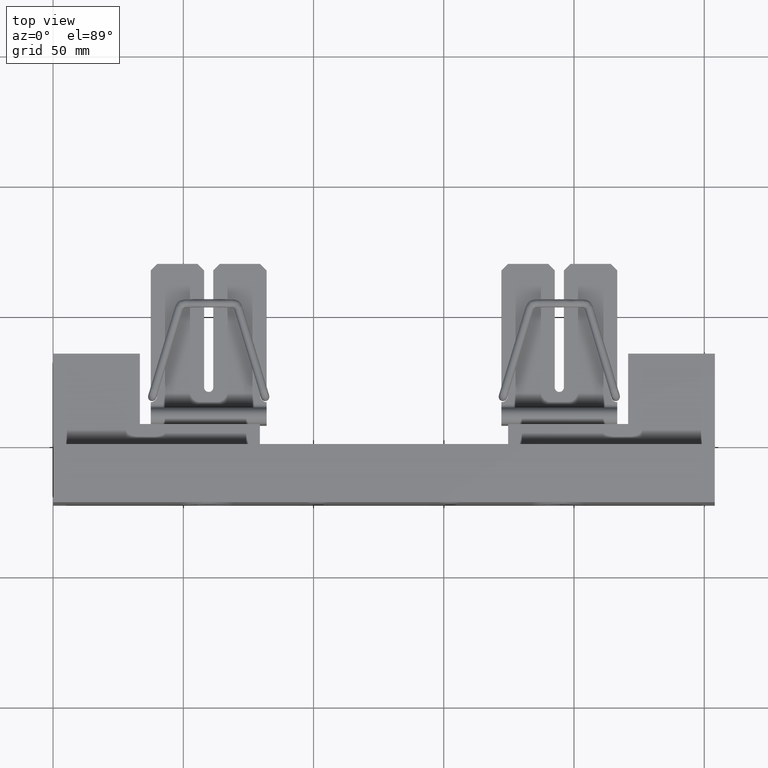
[diagram: clean part render]
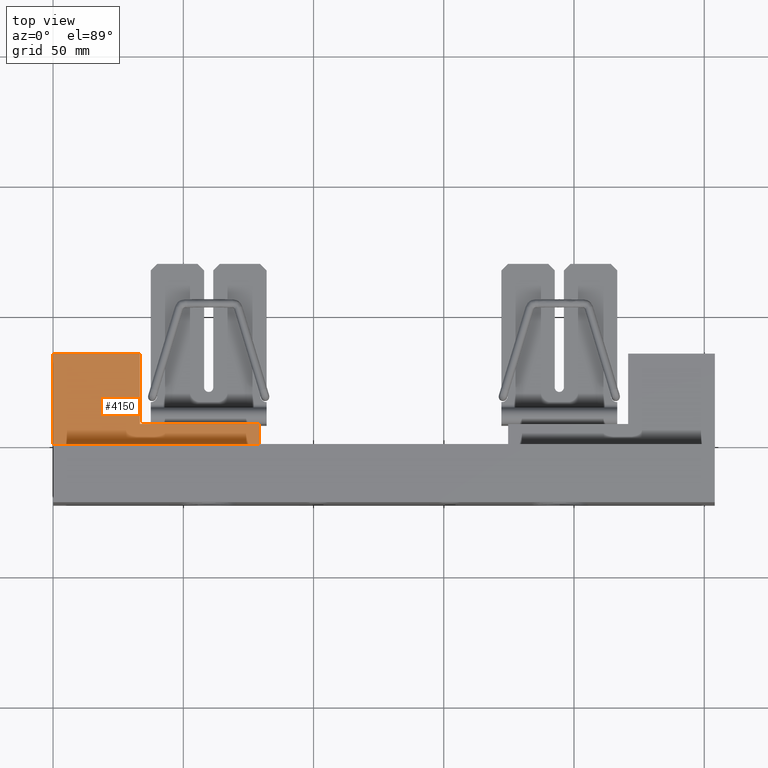
[diagram: same view with one face highlighted and labeled with its STEP entity id]
A machine part, top view. The second image highlights one B-rep face of the part: STEP entity #4150.
In plain terms, the highlighted planar face has unit normal (-0, 0, 1).
Its self-contained STEP definition (entity closure, byte-faithful):
#3 = ORIENTED_EDGE ( 'NONE', *, *, #23728, .T. ) ;
#82 = LINE ( 'NONE', #17289, #13874 ) ;
#242 = DIRECTION ( 'NONE',  ( 0.0000000000000000000, 1.000000000000000000, 0.0000000000000000000 ) ) ;
#260 = DIRECTION ( 'NONE',  ( 4.959919040117767100E-017, -1.000000000000000000, 0.0000000000000000000 ) ) ;
#515 = DIRECTION ( 'NONE',  ( 0.0000000000000000000, 1.000000000000000000, 0.0000000000000000000 ) ) ;
#657 = ORIENTED_EDGE ( 'NONE', *, *, #11053, .T. ) ;
#699 = ORIENTED_EDGE ( 'NONE', *, *, #1376, .T. ) ;
#709 = LINE ( 'NONE', #5549, #9122 ) ;
#1376 = EDGE_CURVE ( 'NONE', #4646, #21535, #16681, .T. ) ;
#1887 = AXIS2_PLACEMENT_3D ( 'NONE', #6257, #19402, #8162 ) ;
#2386 = ORIENTED_EDGE ( 'NONE', *, *, #13178, .T. ) ;
#3113 = LINE ( 'NONE', #11049, #15434 ) ;
#3235 = DIRECTION ( 'NONE',  ( -1.000000000000000000, -2.082201214683127100E-016, 0.0000000000000000000 ) ) ;
#4150 = ADVANCED_FACE ( 'NONE', ( #8478 ), #9947, .T. ) ;
#4353 = EDGE_CURVE ( 'NONE', #21535, #17630, #709, .T. ) ;
#4608 = VECTOR ( 'NONE', #5834, 39.37007874015748100 ) ;
#4646 = VERTEX_POINT ( 'NONE', #21466 ) ;
#4904 = LINE ( 'NONE', #19073, #4608 ) ;
#5549 = CARTESIAN_POINT ( 'NONE',  ( -6.819888680161929000E-017, 1.375000000000000000, 1.000000000000000000 ) ) ;
#5834 = DIRECTION ( 'NONE',  ( 1.000000000000000000, 0.0000000000000000000, 0.0000000000000000000 ) ) ;
#6257 = CARTESIAN_POINT ( 'NONE',  ( 1.516480271171051600E-032, 0.0000000000000000000, 1.000000000000000000 ) ) ;
#6878 = EDGE_CURVE ( 'NONE', #15445, #4646, #7928, .T. ) ;
#7231 = VECTOR ( 'NONE', #242, 39.37007874015748100 ) ;
#7257 = VECTOR ( 'NONE', #3235, 39.37007874015748100 ) ;
#7928 = LINE ( 'NONE', #20478, #7231 ) ;
#8162 = DIRECTION ( 'NONE',  ( 1.000000000000000000, 0.0000000000000000000, 0.0000000000000000000 ) ) ;
#8478 = FACE_OUTER_BOUND ( 'NONE', #23433, .T. ) ;
#8897 = CARTESIAN_POINT ( 'NONE',  ( 3.125000000000000000, 0.0000000000000000000, 1.000000000000000000 ) ) ;
#9122 = VECTOR ( 'NONE', #260, 39.37007874015748100 ) ;
#9947 = PLANE ( 'NONE',  #1887 ) ;
#10343 = CARTESIAN_POINT ( 'NONE',  ( 0.0000000000000000000, 0.0000000000000000000, 1.000000000000000000 ) ) ;
#11049 = CARTESIAN_POINT ( 'NONE',  ( 3.125000000000000000, 0.3120000000000000600, 1.000000000000000000 ) ) ;
#11053 = EDGE_CURVE ( 'NONE', #18999, #23617, #82, .T. ) ;
#12998 = CARTESIAN_POINT ( 'NONE',  ( -6.819888680161929000E-017, 1.375000000000000000, 1.000000000000000000 ) ) ;
#13178 = EDGE_CURVE ( 'NONE', #23617, #15445, #3113, .T. ) ;
#13874 = VECTOR ( 'NONE', #515, 39.37007874015748100 ) ;
#14400 = CARTESIAN_POINT ( 'NONE',  ( 1.312000000000000100, 1.375000000000000200, 1.000000000000000000 ) ) ;
#15434 = VECTOR ( 'NONE', #22378, 39.37007874015748100 ) ;
#15445 = VERTEX_POINT ( 'NONE', #18751 ) ;
#16681 = LINE ( 'NONE', #14400, #7257 ) ;
#16867 = ORIENTED_EDGE ( 'NONE', *, *, #4353, .T. ) ;
#17221 = ORIENTED_EDGE ( 'NONE', *, *, #6878, .T. ) ;
#17289 = CARTESIAN_POINT ( 'NONE',  ( 3.125000000000000000, 0.0000000000000000000, 1.000000000000000000 ) ) ;
#17630 = VERTEX_POINT ( 'NONE', #10343 ) ;
#18751 = CARTESIAN_POINT ( 'NONE',  ( 1.312000000000000100, 0.3119999999999998300, 1.000000000000000000 ) ) ;
#18999 = VERTEX_POINT ( 'NONE', #8897 ) ;
#19073 = CARTESIAN_POINT ( 'NONE',  ( 0.0000000000000000000, 0.0000000000000000000, 1.000000000000000000 ) ) ;
#19402 = DIRECTION ( 'NONE',  ( -0.0000000000000000000, 0.0000000000000000000, 1.000000000000000000 ) ) ;
#20478 = CARTESIAN_POINT ( 'NONE',  ( 1.312000000000000100, 0.3119999999999998300, 1.000000000000000000 ) ) ;
#21466 = CARTESIAN_POINT ( 'NONE',  ( 1.312000000000000100, 1.375000000000000200, 1.000000000000000000 ) ) ;
#21535 = VERTEX_POINT ( 'NONE', #12998 ) ;
#22378 = DIRECTION ( 'NONE',  ( -1.000000000000000000, -1.130108105487147000E-016, 0.0000000000000000000 ) ) ;
#22462 = CARTESIAN_POINT ( 'NONE',  ( 3.125000000000000000, 0.3120000000000000600, 1.000000000000000000 ) ) ;
#23433 = EDGE_LOOP ( 'NONE', ( #16867, #3, #657, #2386, #17221, #699 ) ) ;
#23617 = VERTEX_POINT ( 'NONE', #22462 ) ;
#23728 = EDGE_CURVE ( 'NONE', #17630, #18999, #4904, .T. ) ;